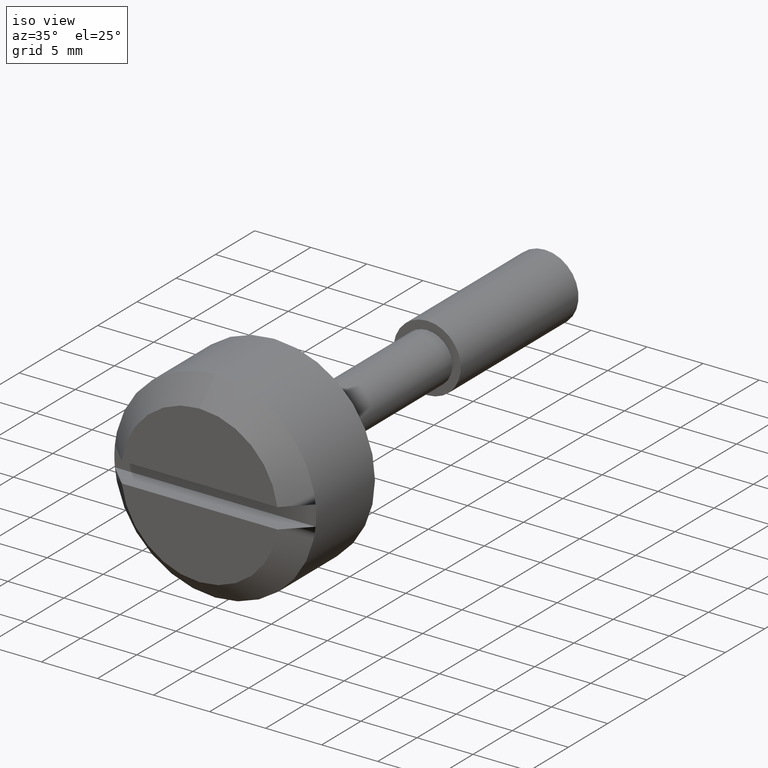
[diagram: clean part render]
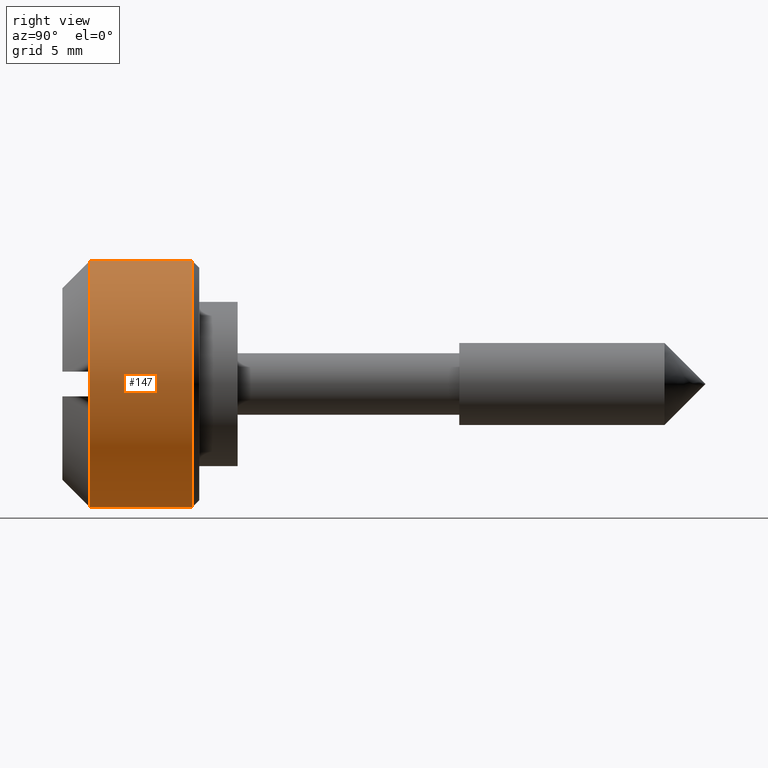
[diagram: tour spotlight — one face highlighted and labeled with its STEP entity id]
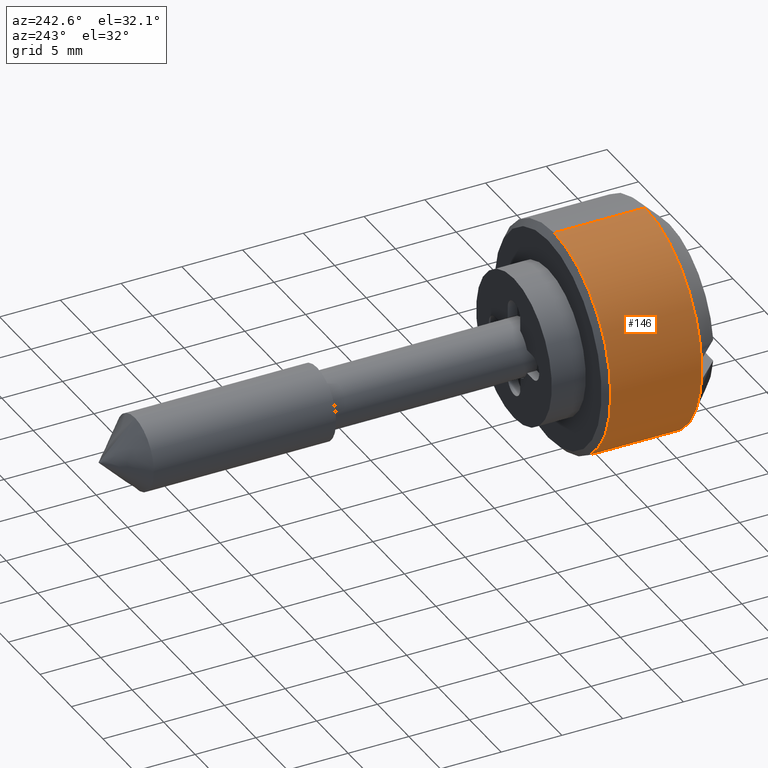
[diagram: tour spotlight — one face highlighted and labeled with its STEP entity id]
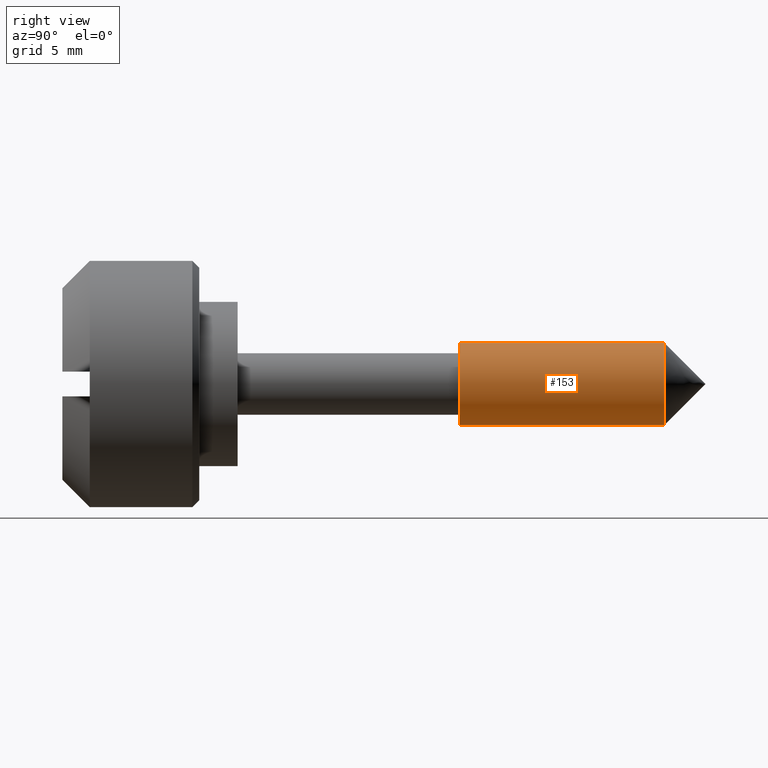
[diagram: tour spotlight — one face highlighted and labeled with its STEP entity id]
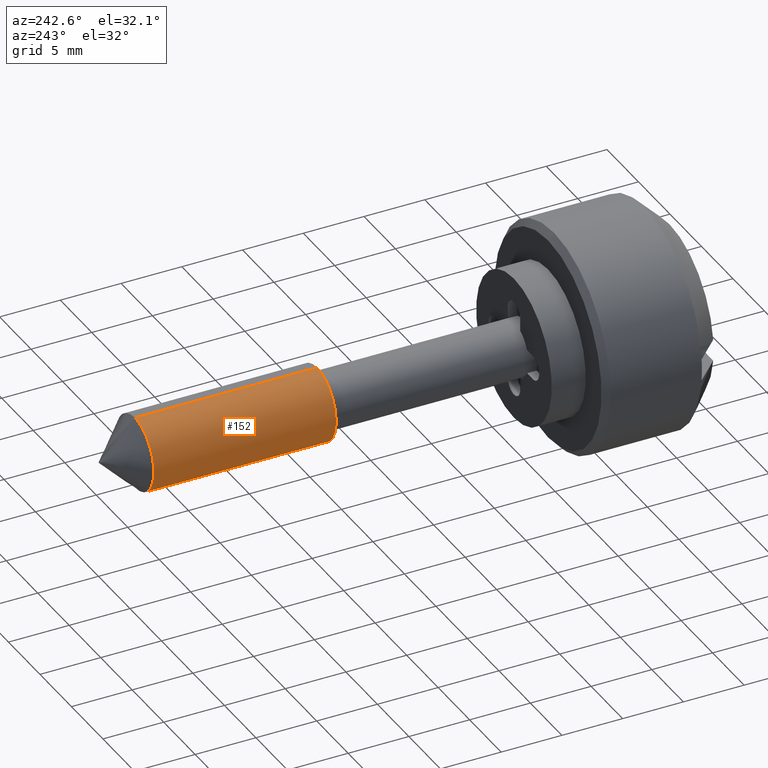
[diagram: tour spotlight — one face highlighted and labeled with its STEP entity id]
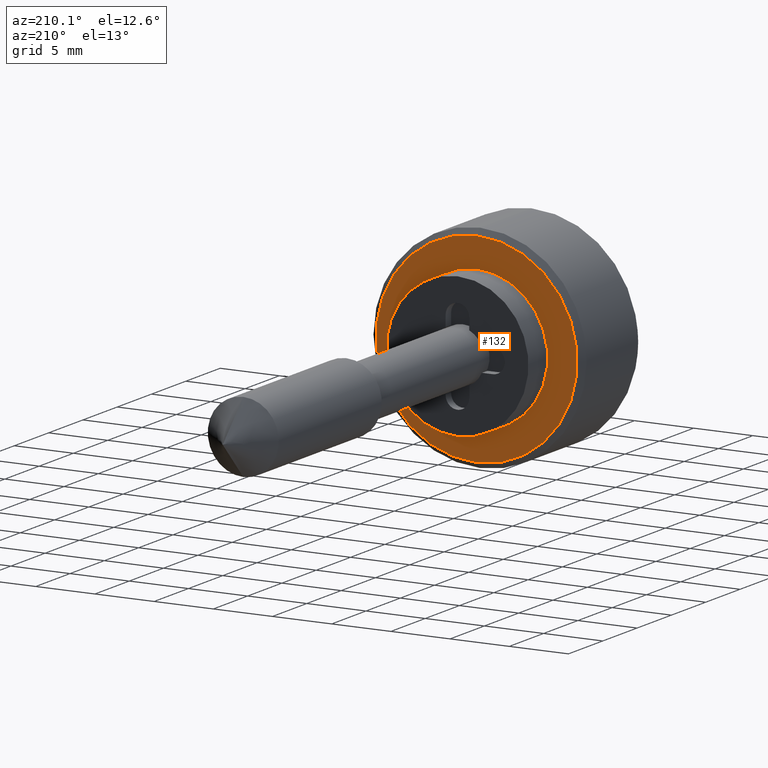
[diagram: tour spotlight — one face highlighted and labeled with its STEP entity id]
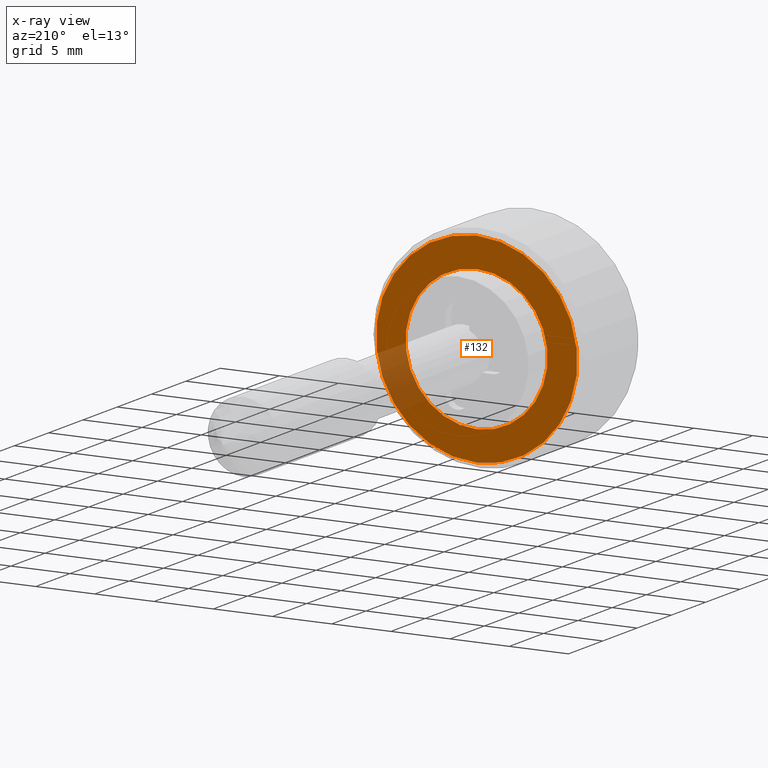
[diagram: x-ray of the same camera — body ghosted, this tour face saturated]
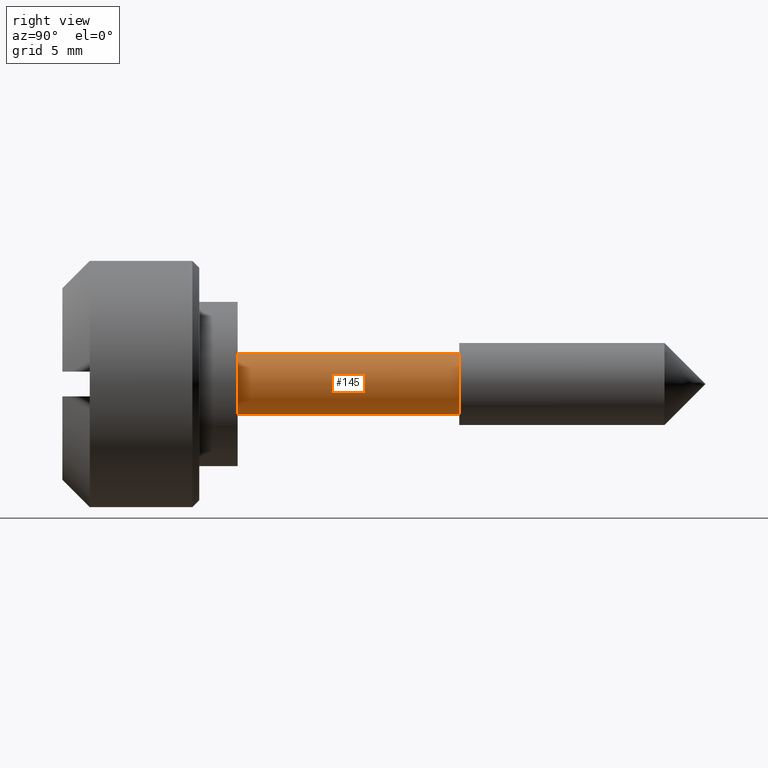
[diagram: tour spotlight — one face highlighted and labeled with its STEP entity id]
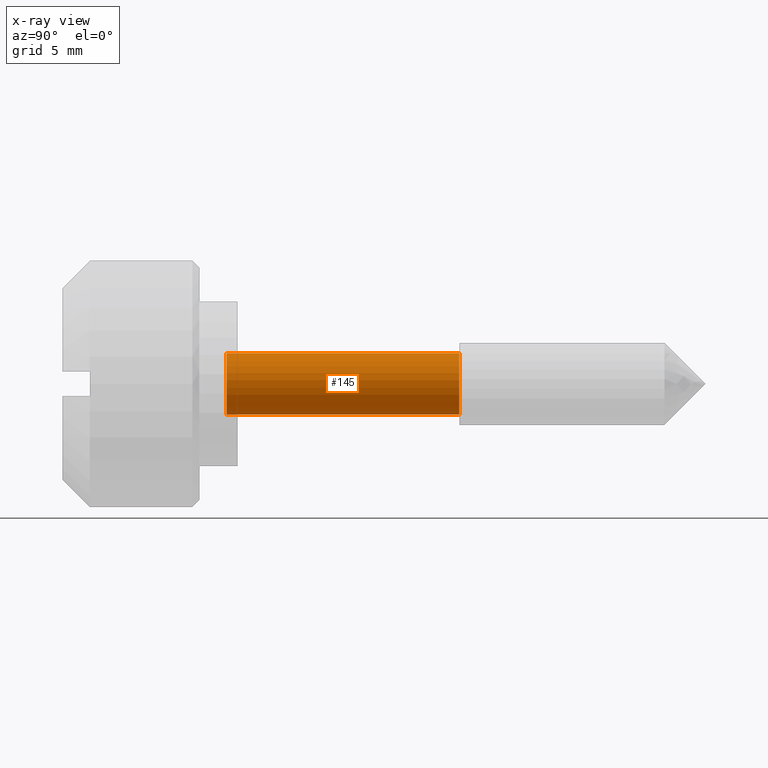
[diagram: x-ray of the same camera — body ghosted, this tour face saturated]
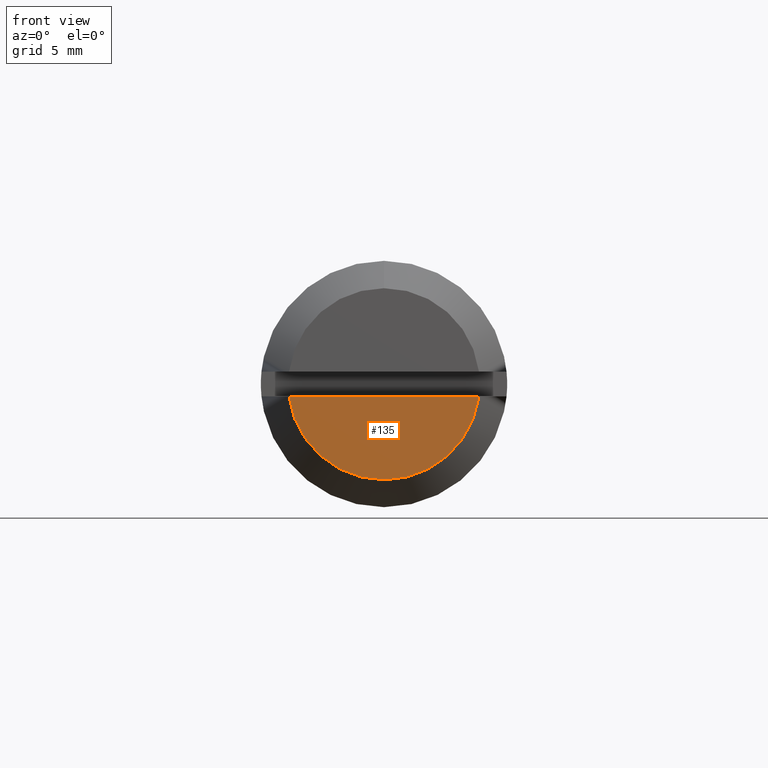
[diagram: tour spotlight — one face highlighted and labeled with its STEP entity id]
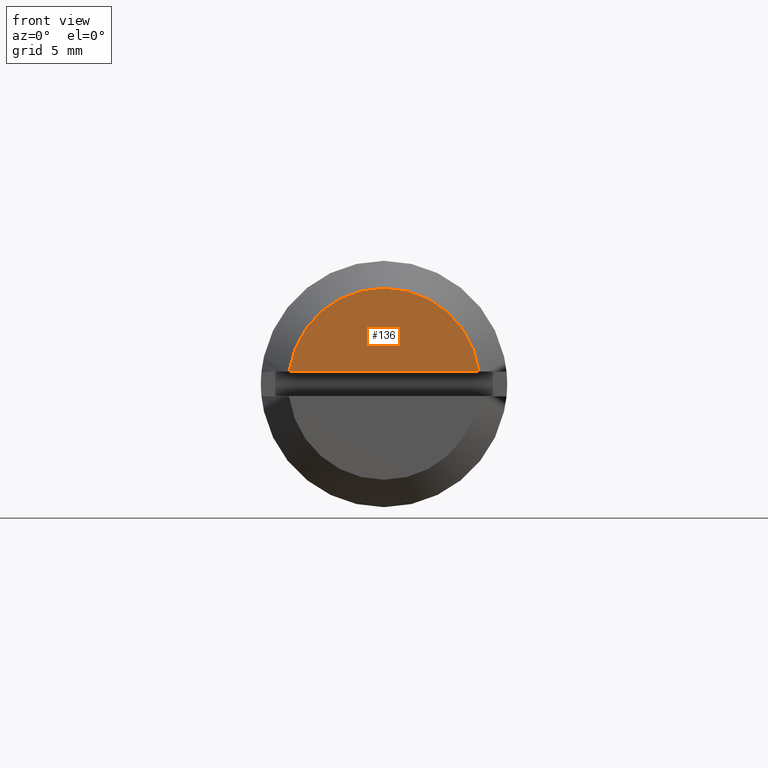
[diagram: tour spotlight — one face highlighted and labeled with its STEP entity id]
A machine part: a face-by-face anatomy tour. The part has 42 B-rep faces; the first image is the clean iso view, then the 8 largest visible faces are spotlighted one at a time (largest first), each with its STEP entity span.

Face 1 — right view, entity #147. In plain terms, the highlighted cylindrical surface (partial cylindrical patch) has radius 9 mm, axis along (0, -1, -0).
Definition (entity closure, byte-faithful):
#147=ADVANCED_FACE('',(#510),#509,.T.);
#509=CYLINDRICAL_SURFACE('',#774,9.00000000000E+00);
#510=FACE_OUTER_BOUND('',#775,.T.);
#771=CARTESIAN_POINT('',(-1.00200000000E+03,0.00000000000E+00,0.00000000000E+00));
#772=DIRECTION('',(-1.00000000000E+00,-0.00000000000E+00,-0.00000000000E+00));
#773=DIRECTION('',(-0.00000000000E+00,-0.00000000000E+00,1.00000000000E+00));
#774=AXIS2_PLACEMENT_3D('',#771,#772,#773);
#775=EDGE_LOOP('',(#996,#997,#998,#999));
#996=ORIENTED_EDGE('',*,*,#1113,.T.);
#997=ORIENTED_EDGE('',*,*,#1119,.T.);
#998=ORIENTED_EDGE('',*,*,#1121,.F.);
#999=ORIENTED_EDGE('',*,*,#1120,.F.);
#1113=EDGE_CURVE('',#1669,#1668,#1688,.T.);
#1119=EDGE_CURVE('',#1668,#1718,#1726,.T.);
#1120=EDGE_CURVE('',#1669,#1719,#1732,.T.);
#1121=EDGE_CURVE('',#1719,#1718,#1738,.T.);
#1668=VERTEX_POINT('',#2133);
#1669=VERTEX_POINT('',#2134);
#1688=CIRCLE('',#2146,9.00000000000E+00);
#1718=VERTEX_POINT('',#2155);
#1719=VERTEX_POINT('',#2156);
#1726=(BOUNDED_CURVE() B_SPLINE_CURVE(1,(#2161,#2162),.UNSPECIFIED.,.F.,.F.) B_SPLINE_CURVE_WITH_KNOTS((2,2),(8.33333320912E-02,9.16666667486E-01),.UNSPECIFIED.) CURVE() GEOMETRIC_REPRESENTATION_ITEM() RATIONAL_B_SPLINE_CURVE((1.00000000000E+00,1.00000000000E+00)) REPRESENTATION_ITEM('') );
#1732=(BOUNDED_CURVE() B_SPLINE_CURVE(1,(#2163,#2164),.UNSPECIFIED.,.F.,.F.) B_SPLINE_CURVE_WITH_KNOTS((2,2),(8.33333333333E-02,9.16666666667E-01),.UNSPECIFIED.) CURVE() GEOMETRIC_REPRESENTATION_ITEM() RATIONAL_B_SPLINE_CURVE((7.50000000000E-01,7.50000000000E-01)) REPRESENTATION_ITEM('') );
#1738=CIRCLE('',#2168,9.00000000000E+00);
#2133=CARTESIAN_POINT('',(-2.50000000000E+00,2.07241631263E-15,9.00000000000E+00));
#2134=CARTESIAN_POINT('',(-2.50000000000E+00,0.00000000000E+00,-9.00000000000E+00));
#2143=CARTESIAN_POINT('',(-2.50000000000E+00,0.00000000000E+00,0.00000000000E+00));
#2144=DIRECTION('',(-1.00000000000E+00,0.00000000000E+00,-0.00000000000E+00));
#2145=DIRECTION('',(0.00000000000E+00,-1.22460635382E-16,-1.00000000000E+00));
#2146=AXIS2_PLACEMENT_3D('',#2143,#2144,#2145);
#2155=CARTESIAN_POINT('',(-9.99990000000E+00,0.00000000000E+00,9.00000000000E+00));
#2156=CARTESIAN_POINT('',(-9.99990000000E+00,5.92118946467E-16,-9.00000000000E+00));
#2161=CARTESIAN_POINT('',(-2.49999998882E+00,0.00000000000E+00,9.00000000000E+00));
#2162=CARTESIAN_POINT('',(-9.99990000737E+00,0.00000000000E+00,9.00000000000E+00));
#2163=CARTESIAN_POINT('',(-2.50000000000E+00,-5.92118946467E-16,-9.00000000000E+00));
#2164=CARTESIAN_POINT('',(-9.99990000000E+00,-5.92118946467E-16,-9.00000000000E+00));
#2165=CARTESIAN_POINT('',(-9.99990000000E+00,0.00000000000E+00,0.00000000000E+00));
#2166=DIRECTION('',(-1.00000000000E+00,0.00000000000E+00,0.00000000000E+00));
#2167=DIRECTION('',(0.00000000000E+00,-1.22460635382E-16,1.00000000000E+00));
#2168=AXIS2_PLACEMENT_3D('',#2165,#2166,#2167);

Face 2 — auxiliary view, entity #146. In plain terms, the highlighted cylindrical surface (partial cylindrical patch) has radius 9 mm, axis along (0, -1, -0).
Definition (entity closure, byte-faithful):
#146=ADVANCED_FACE('',(#500),#499,.T.);
#499=CYLINDRICAL_SURFACE('',#769,9.00000000000E+00);
#500=FACE_OUTER_BOUND('',#770,.T.);
#766=CARTESIAN_POINT('',(-1.00200000000E+03,0.00000000000E+00,0.00000000000E+00));
#767=DIRECTION('',(-1.00000000000E+00,-0.00000000000E+00,-0.00000000000E+00));
#768=DIRECTION('',(-0.00000000000E+00,-0.00000000000E+00,1.00000000000E+00));
#769=AXIS2_PLACEMENT_3D('',#766,#767,#768);
#770=EDGE_LOOP('',(#992,#993,#994,#995));
#992=ORIENTED_EDGE('',*,*,#1118,.F.);
#993=ORIENTED_EDGE('',*,*,#1119,.F.);
#994=ORIENTED_EDGE('',*,*,#1110,.T.);
#995=ORIENTED_EDGE('',*,*,#1120,.T.);
#1110=EDGE_CURVE('',#1668,#1669,#1670,.T.);
#1118=EDGE_CURVE('',#1718,#1719,#1720,.T.);
#1119=EDGE_CURVE('',#1668,#1718,#1726,.T.);
#1120=EDGE_CURVE('',#1669,#1719,#1732,.T.);
#1668=VERTEX_POINT('',#2133);
#1669=VERTEX_POINT('',#2134);
#1670=CIRCLE('',#2138,9.00000000000E+00);
#1718=VERTEX_POINT('',#2155);
#1719=VERTEX_POINT('',#2156);
#1720=CIRCLE('',#2160,9.00000000000E+00);
#1726=(BOUNDED_CURVE() B_SPLINE_CURVE(1,(#2161,#2162),.UNSPECIFIED.,.F.,.F.) B_SPLINE_CURVE_WITH_KNOTS((2,2),(8.33333320912E-02,9.16666667486E-01),.UNSPECIFIED.) CURVE() GEOMETRIC_REPRESENTATION_ITEM() RATIONAL_B_SPLINE_CURVE((1.00000000000E+00,1.00000000000E+00)) REPRESENTATION_ITEM('') );
#1732=(BOUNDED_CURVE() B_SPLINE_CURVE(1,(#2163,#2164),.UNSPECIFIED.,.F.,.F.) B_SPLINE_CURVE_WITH_KNOTS((2,2),(8.33333333333E-02,9.16666666667E-01),.UNSPECIFIED.) CURVE() GEOMETRIC_REPRESENTATION_ITEM() RATIONAL_B_SPLINE_CURVE((7.50000000000E-01,7.50000000000E-01)) REPRESENTATION_ITEM('') );
#2133=CARTESIAN_POINT('',(-2.50000000000E+00,2.07241631263E-15,9.00000000000E+00));
#2134=CARTESIAN_POINT('',(-2.50000000000E+00,0.00000000000E+00,-9.00000000000E+00));
#2135=CARTESIAN_POINT('',(-2.50000000000E+00,0.00000000000E+00,0.00000000000E+00));
#2136=DIRECTION('',(-1.00000000000E+00,0.00000000000E+00,-0.00000000000E+00));
#2137=DIRECTION('',(0.00000000000E+00,-1.22460635382E-16,-1.00000000000E+00));
#2138=AXIS2_PLACEMENT_3D('',#2135,#2136,#2137);
#2155=CARTESIAN_POINT('',(-9.99990000000E+00,0.00000000000E+00,9.00000000000E+00));
#2156=CARTESIAN_POINT('',(-9.99990000000E+00,5.92118946467E-16,-9.00000000000E+00));
#2157=CARTESIAN_POINT('',(-9.99990000000E+00,0.00000000000E+00,0.00000000000E+00));
#2158=DIRECTION('',(-1.00000000000E+00,0.00000000000E+00,0.00000000000E+00));
#2159=DIRECTION('',(0.00000000000E+00,-1.22460635382E-16,1.00000000000E+00));
#2160=AXIS2_PLACEMENT_3D('',#2157,#2158,#2159);
#2161=CARTESIAN_POINT('',(-2.49999998882E+00,0.00000000000E+00,9.00000000000E+00));
#2162=CARTESIAN_POINT('',(-9.99990000737E+00,0.00000000000E+00,9.00000000000E+00));
#2163=CARTESIAN_POINT('',(-2.50000000000E+00,-5.92118946467E-16,-9.00000000000E+00));
#2164=CARTESIAN_POINT('',(-9.99990000000E+00,-5.92118946467E-16,-9.00000000000E+00));

Face 3 — right view, entity #153. In plain terms, the highlighted cylindrical surface (partial cylindrical patch) has radius 3 mm, axis along (0, 1, 0).
Definition (entity closure, byte-faithful):
#153=ADVANCED_FACE('',(#570),#569,.T.);
#569=CYLINDRICAL_SURFACE('',#828,3.00000000000E+00);
#570=FACE_OUTER_BOUND('',#829,.T.);
#825=CARTESIAN_POINT('',(1.00000000000E+01,0.00000000000E+00,0.00000000000E+00));
#826=DIRECTION('',(1.00000000000E+00,-0.00000000000E+00,-0.00000000000E+00));
#827=DIRECTION('',(0.00000000000E+00,0.00000000000E+00,-1.00000000000E+00));
#828=AXIS2_PLACEMENT_3D('',#825,#826,#827);
#829=EDGE_LOOP('',(#1026,#1027,#1028,#1029));
#1026=ORIENTED_EDGE('',*,*,#1093,.F.);
#1027=ORIENTED_EDGE('',*,*,#1128,.T.);
#1028=ORIENTED_EDGE('',*,*,#1124,.T.);
#1029=ORIENTED_EDGE('',*,*,#1129,.F.);
#1093=EDGE_CURVE('',#1547,#1546,#1554,.T.);
#1124=EDGE_CURVE('',#1756,#1757,#1758,.T.);
#1128=EDGE_CURVE('',#1547,#1756,#1783,.T.);
#1129=EDGE_CURVE('',#1546,#1757,#1789,.T.);
#1546=VERTEX_POINT('',#2051);
#1547=VERTEX_POINT('',#2052);
#1554=CIRCLE('',#2060,3.00000000000E+00);
#1756=VERTEX_POINT('',#2173);
#1757=VERTEX_POINT('',#2174);
#1758=CIRCLE('',#2178,3.00000000000E+00);
#1783=(BOUNDED_CURVE() B_SPLINE_CURVE(1,(#2188,#2189),.UNSPECIFIED.,.F.,.F.) B_SPLINE_CURVE_WITH_KNOTS((2,2),(8.33333328360E-02,9.16666666871E-01),.UNSPECIFIED.) CURVE() GEOMETRIC_REPRESENTATION_ITEM() RATIONAL_B_SPLINE_CURVE((1.00000000000E+00,1.00000000000E+00)) REPRESENTATION_ITEM('') );
#1789=(BOUNDED_CURVE() B_SPLINE_CURVE(1,(#2190,#2191),.UNSPECIFIED.,.F.,.F.) B_SPLINE_CURVE_WITH_KNOTS((2,2),(8.33333333333E-02,9.16666666667E-01),.UNSPECIFIED.) CURVE() GEOMETRIC_REPRESENTATION_ITEM() RATIONAL_B_SPLINE_CURVE((7.50000000000E-01,7.50000000000E-01)) REPRESENTATION_ITEM('') );
#2051=CARTESIAN_POINT('',(1.70000000000E+01,0.00000000000E+00,3.00000000000E+00));
#2052=CARTESIAN_POINT('',(1.70000000000E+01,-1.48029736617E-16,-3.00000000000E+00));
#2057=CARTESIAN_POINT('',(1.70000000000E+01,0.00000000000E+00,0.00000000000E+00));
#2058=DIRECTION('',(-1.00000000000E+00,0.00000000000E+00,0.00000000000E+00));
#2059=DIRECTION('',(0.00000000000E+00,-1.22460635382E-16,1.00000000000E+00));
#2060=AXIS2_PLACEMENT_3D('',#2057,#2058,#2059);
#2173=CARTESIAN_POINT('',(3.20000000000E+01,-1.48029736617E-16,-3.00000000000E+00));
#2174=CARTESIAN_POINT('',(3.20000000000E+01,0.00000000000E+00,3.00000000000E+00));
#2175=CARTESIAN_POINT('',(3.20000000000E+01,0.00000000000E+00,0.00000000000E+00));
#2176=DIRECTION('',(-1.00000000000E+00,0.00000000000E+00,0.00000000000E+00));
#2177=DIRECTION('',(0.00000000000E+00,-1.22460635382E-16,1.00000000000E+00));
#2178=AXIS2_PLACEMENT_3D('',#2175,#2176,#2177);
#2188=CARTESIAN_POINT('',(1.69999999910E+01,0.00000000000E+00,-3.00000000000E+00));
#2189=CARTESIAN_POINT('',(3.20000000037E+01,0.00000000000E+00,-3.00000000000E+00));
#2190=CARTESIAN_POINT('',(1.70000000000E+01,-1.48029736617E-16,3.00000000000E+00));
#2191=CARTESIAN_POINT('',(3.20000000000E+01,-1.48029736617E-16,3.00000000000E+00));

Face 4 — auxiliary view, entity #152. In plain terms, the highlighted cylindrical surface (partial cylindrical patch) has radius 3 mm, axis along (0, 1, 0).
Definition (entity closure, byte-faithful):
#152=ADVANCED_FACE('',(#560),#559,.T.);
#559=CYLINDRICAL_SURFACE('',#823,3.00000000000E+00);
#560=FACE_OUTER_BOUND('',#824,.T.);
#820=CARTESIAN_POINT('',(1.00000000000E+01,0.00000000000E+00,0.00000000000E+00));
#821=DIRECTION('',(1.00000000000E+00,-0.00000000000E+00,-0.00000000000E+00));
#822=DIRECTION('',(0.00000000000E+00,0.00000000000E+00,-1.00000000000E+00));
#823=AXIS2_PLACEMENT_3D('',#820,#821,#822);
#824=EDGE_LOOP('',(#1022,#1023,#1024,#1025));
#1022=ORIENTED_EDGE('',*,*,#1127,.T.);
#1023=ORIENTED_EDGE('',*,*,#1128,.F.);
#1024=ORIENTED_EDGE('',*,*,#1092,.F.);
#1025=ORIENTED_EDGE('',*,*,#1129,.T.);
#1092=EDGE_CURVE('',#1546,#1547,#1548,.T.);
#1127=EDGE_CURVE('',#1757,#1756,#1777,.T.);
#1128=EDGE_CURVE('',#1547,#1756,#1783,.T.);
#1129=EDGE_CURVE('',#1546,#1757,#1789,.T.);
#1546=VERTEX_POINT('',#2051);
#1547=VERTEX_POINT('',#2052);
#1548=CIRCLE('',#2056,3.00000000000E+00);
#1756=VERTEX_POINT('',#2173);
#1757=VERTEX_POINT('',#2174);
#1777=CIRCLE('',#2187,3.00000000000E+00);
#1783=(BOUNDED_CURVE() B_SPLINE_CURVE(1,(#2188,#2189),.UNSPECIFIED.,.F.,.F.) B_SPLINE_CURVE_WITH_KNOTS((2,2),(8.33333328360E-02,9.16666666871E-01),.UNSPECIFIED.) CURVE() GEOMETRIC_REPRESENTATION_ITEM() RATIONAL_B_SPLINE_CURVE((1.00000000000E+00,1.00000000000E+00)) REPRESENTATION_ITEM('') );
#1789=(BOUNDED_CURVE() B_SPLINE_CURVE(1,(#2190,#2191),.UNSPECIFIED.,.F.,.F.) B_SPLINE_CURVE_WITH_KNOTS((2,2),(8.33333333333E-02,9.16666666667E-01),.UNSPECIFIED.) CURVE() GEOMETRIC_REPRESENTATION_ITEM() RATIONAL_B_SPLINE_CURVE((7.50000000000E-01,7.50000000000E-01)) REPRESENTATION_ITEM('') );
#2051=CARTESIAN_POINT('',(1.70000000000E+01,0.00000000000E+00,3.00000000000E+00));
#2052=CARTESIAN_POINT('',(1.70000000000E+01,-1.48029736617E-16,-3.00000000000E+00));
#2053=CARTESIAN_POINT('',(1.70000000000E+01,0.00000000000E+00,0.00000000000E+00));
#2054=DIRECTION('',(-1.00000000000E+00,0.00000000000E+00,0.00000000000E+00));
#2055=DIRECTION('',(0.00000000000E+00,-1.22460635382E-16,1.00000000000E+00));
#2056=AXIS2_PLACEMENT_3D('',#2053,#2054,#2055);
#2173=CARTESIAN_POINT('',(3.20000000000E+01,-1.48029736617E-16,-3.00000000000E+00));
#2174=CARTESIAN_POINT('',(3.20000000000E+01,0.00000000000E+00,3.00000000000E+00));
#2184=CARTESIAN_POINT('',(3.20000000000E+01,0.00000000000E+00,0.00000000000E+00));
#2185=DIRECTION('',(-1.00000000000E+00,0.00000000000E+00,0.00000000000E+00));
#2186=DIRECTION('',(0.00000000000E+00,-1.22460635382E-16,1.00000000000E+00));
#2187=AXIS2_PLACEMENT_3D('',#2184,#2185,#2186);
#2188=CARTESIAN_POINT('',(1.69999999910E+01,0.00000000000E+00,-3.00000000000E+00));
#2189=CARTESIAN_POINT('',(3.20000000037E+01,0.00000000000E+00,-3.00000000000E+00));
#2190=CARTESIAN_POINT('',(1.70000000000E+01,-1.48029736617E-16,3.00000000000E+00));
#2191=CARTESIAN_POINT('',(3.20000000000E+01,-1.48029736617E-16,3.00000000000E+00));

Face 5 — auxiliary view, entity #132. An x-ray twin of the same camera follows (body ghosted, this face saturated) — the face is partly hidden behind the body. In plain terms, the highlighted planar face has unit normal (0, 1, 0).
Definition (entity closure, byte-faithful):
#132=ADVANCED_FACE('',(#357,#358),#356,.T.);
#356=PLANE('',#684);
#357=FACE_OUTER_BOUND('',#685,.T.);
#358=FACE_BOUND('',#686,.T.);
#681=CARTESIAN_POINT('',(-2.00000000000E+00,-1.76669182372E+01,-1.10500000000E+01));
#682=DIRECTION('',(1.00000000000E+00,0.00000000000E+00,0.00000000000E+00));
#683=DIRECTION('',(0.00000000000E+00,1.00000000000E+00,0.00000000000E+00));
#684=AXIS2_PLACEMENT_3D('',#681,#682,#683);
#685=EDGE_LOOP('',(#938,#939));
#686=EDGE_LOOP('',(#940,#941));
#938=ORIENTED_EDGE('',*,*,#1084,.T.);
#939=ORIENTED_EDGE('',*,*,#1085,.T.);
#940=ORIENTED_EDGE('',*,*,#1086,.T.);
#941=ORIENTED_EDGE('',*,*,#1087,.T.);
#1084=EDGE_CURVE('',#1490,#1491,#1492,.T.);
#1085=EDGE_CURVE('',#1491,#1490,#1498,.T.);
#1086=EDGE_CURVE('',#1504,#1505,#1506,.T.);
#1087=EDGE_CURVE('',#1505,#1504,#1512,.T.);
#1490=VERTEX_POINT('',#2011);
#1491=VERTEX_POINT('',#2012);
#1492=CIRCLE('',#2016,8.50000000000E+00);
#1498=CIRCLE('',#2020,8.50000000000E+00);
#1504=VERTEX_POINT('',#2021);
#1505=VERTEX_POINT('',#2022);
#1506=CIRCLE('',#2026,6.00000000000E+00);
#1512=CIRCLE('',#2030,6.00000000000E+00);
#2011=CARTESIAN_POINT('',(-2.00000000000E+00,0.00000000000E+00,-8.50000000000E+00));
#2012=CARTESIAN_POINT('',(-2.00000000000E+00,8.88178419700E-16,8.50000000000E+00));
#2013=CARTESIAN_POINT('',(-2.00000000000E+00,0.00000000000E+00,0.00000000000E+00));
#2014=DIRECTION('',(1.00000000000E+00,0.00000000000E+00,0.00000000000E+00));
#2015=DIRECTION('',(0.00000000000E+00,-1.22460635382E-16,-1.00000000000E+00));
#2016=AXIS2_PLACEMENT_3D('',#2013,#2014,#2015);
#2017=CARTESIAN_POINT('',(-2.00000000000E+00,0.00000000000E+00,0.00000000000E+00));
#2018=DIRECTION('',(1.00000000000E+00,0.00000000000E+00,0.00000000000E+00));
#2019=DIRECTION('',(0.00000000000E+00,-1.22460635382E-16,-1.00000000000E+00));
#2020=AXIS2_PLACEMENT_3D('',#2017,#2018,#2019);
#2021=CARTESIAN_POINT('',(-2.00000000000E+00,0.00000000000E+00,-6.00000000000E+00));
#2022=CARTESIAN_POINT('',(-2.00000000000E+00,1.18423789293E-15,6.00000000000E+00));
#2023=CARTESIAN_POINT('',(-2.00000000000E+00,0.00000000000E+00,0.00000000000E+00));
#2024=DIRECTION('',(-1.00000000000E+00,0.00000000000E+00,-0.00000000000E+00));
#2025=DIRECTION('',(0.00000000000E+00,-1.22460635382E-16,-1.00000000000E+00));
#2026=AXIS2_PLACEMENT_3D('',#2023,#2024,#2025);
#2027=CARTESIAN_POINT('',(-2.00000000000E+00,0.00000000000E+00,0.00000000000E+00));
#2028=DIRECTION('',(-1.00000000000E+00,0.00000000000E+00,-0.00000000000E+00));
#2029=DIRECTION('',(0.00000000000E+00,-1.22460635382E-16,-1.00000000000E+00));
#2030=AXIS2_PLACEMENT_3D('',#2027,#2028,#2029);

Face 6 — right view, entity #145. An x-ray twin of the same camera follows (body ghosted, this face saturated) — the face is partly hidden behind the body. In plain terms, the highlighted cylindrical surface (edge-blend (fillet) strip) has radius 2.25 mm, axis along (0, 1, 0).
Definition (entity closure, byte-faithful):
#145=ADVANCED_FACE('',(#490),#489,.T.);
#489=CYLINDRICAL_SURFACE('',#764,2.25000000000E+00);
#490=FACE_OUTER_BOUND('',#765,.T.);
#761=CARTESIAN_POINT('',(1.00000000000E+03,0.00000000000E+00,0.00000000000E+00));
#762=DIRECTION('',(1.00000000000E+00,-0.00000000000E+00,-0.00000000000E+00));
#763=DIRECTION('',(-0.00000000000E+00,-0.00000000000E+00,-1.00000000000E+00));
#764=AXIS2_PLACEMENT_3D('',#761,#762,#763);
#765=EDGE_LOOP('',(#988,#989,#990,#991));
#988=ORIENTED_EDGE('',*,*,#1090,.T.);
#989=ORIENTED_EDGE('',*,*,#1116,.T.);
#990=ORIENTED_EDGE('',*,*,#1095,.F.);
#991=ORIENTED_EDGE('',*,*,#1117,.F.);
#1090=EDGE_CURVE('',#1532,#1533,#1534,.T.);
#1095=EDGE_CURVE('',#1561,#1560,#1568,.T.);
#1116=EDGE_CURVE('',#1533,#1560,#1706,.T.);
#1117=EDGE_CURVE('',#1532,#1561,#1712,.T.);
#1532=VERTEX_POINT('',#2041);
#1533=VERTEX_POINT('',#2042);
#1534=CIRCLE('',#2046,2.25000000000E+00);
#1560=VERTEX_POINT('',#2061);
#1561=VERTEX_POINT('',#2062);
#1568=CIRCLE('',#2070,2.25000000000E+00);
#1706=(BOUNDED_CURVE() B_SPLINE_CURVE(1,(#2151,#2152),.UNSPECIFIED.,.F.,.F.) B_SPLINE_CURVE_WITH_KNOTS((2,2),(8.33333328360E-02,9.16666665505E-01),.UNSPECIFIED.) CURVE() GEOMETRIC_REPRESENTATION_ITEM() RATIONAL_B_SPLINE_CURVE((1.00000000000E+00,1.00000000000E+00)) REPRESENTATION_ITEM('') );
#1712=(BOUNDED_CURVE() B_SPLINE_CURVE(1,(#2153,#2154),.UNSPECIFIED.,.F.,.F.) B_SPLINE_CURVE_WITH_KNOTS((2,2),(8.33333333333E-02,9.16666666667E-01),.UNSPECIFIED.) CURVE() GEOMETRIC_REPRESENTATION_ITEM() RATIONAL_B_SPLINE_CURVE((7.50000000000E-01,7.50000000000E-01)) REPRESENTATION_ITEM('') );
#2041=CARTESIAN_POINT('',(0.00000000000E+00,1.48029736617E-16,2.25000000000E+00));
#2042=CARTESIAN_POINT('',(0.00000000000E+00,0.00000000000E+00,-2.25000000000E+00));
#2043=CARTESIAN_POINT('',(0.00000000000E+00,0.00000000000E+00,0.00000000000E+00));
#2044=DIRECTION('',(1.00000000000E+00,0.00000000000E+00,0.00000000000E+00));
#2045=DIRECTION('',(0.00000000000E+00,-1.22460635382E-16,-1.00000000000E+00));
#2046=AXIS2_PLACEMENT_3D('',#2043,#2044,#2045);
#2061=CARTESIAN_POINT('',(1.70000000000E+01,0.00000000000E+00,-2.25000000000E+00));
#2062=CARTESIAN_POINT('',(1.70000000000E+01,1.48029736617E-16,2.25000000000E+00));
#2067=CARTESIAN_POINT('',(1.70000000000E+01,0.00000000000E+00,0.00000000000E+00));
#2068=DIRECTION('',(1.00000000000E+00,0.00000000000E+00,0.00000000000E+00));
#2069=DIRECTION('',(0.00000000000E+00,-1.22460635382E-16,-1.00000000000E+00));
#2070=AXIS2_PLACEMENT_3D('',#2067,#2068,#2069);
#2151=CARTESIAN_POINT('',(-1.01464276980E-08,0.00000000000E+00,-2.25000000000E+00));
#2152=CARTESIAN_POINT('',(1.69999999763E+01,0.00000000000E+00,-2.25000000000E+00));
#2153=CARTESIAN_POINT('',(2.96059473233E-16,-1.48029736617E-16,2.25000000000E+00));
#2154=CARTESIAN_POINT('',(1.70000000000E+01,-1.48029736617E-16,2.25000000000E+00));

Face 7 — front view, entity #135. In plain terms, the highlighted planar face has unit normal (0, 1, 0).
Definition (entity closure, byte-faithful):
#135=ADVANCED_FACE('',(#390),#389,.F.);
#389=PLANE('',#702);
#390=FACE_OUTER_BOUND('',#703,.T.);
#699=CARTESIAN_POINT('',(-1.19999000000E+01,-8.33028210806E+00,-7.61000000000E+00));
#700=DIRECTION('',(1.00000000000E+00,0.00000000000E+00,0.00000000000E+00));
#701=DIRECTION('',(0.00000000000E+00,1.00000000000E+00,0.00000000000E+00));
#702=AXIS2_PLACEMENT_3D('',#699,#700,#701);
#703=EDGE_LOOP('',(#950,#951,#952));
#950=ORIENTED_EDGE('',*,*,#1096,.T.);
#951=ORIENTED_EDGE('',*,*,#1097,.T.);
#952=ORIENTED_EDGE('',*,*,#1098,.F.);
#1096=EDGE_CURVE('',#1574,#1575,#1576,.T.);
#1097=EDGE_CURVE('',#1575,#1582,#1583,.T.);
#1098=EDGE_CURVE('',#1574,#1582,#1589,.T.);
#1574=VERTEX_POINT('',#2071);
#1575=VERTEX_POINT('',#2072);
#1576=CIRCLE('',#2076,7.00000000000E+00);
#1582=VERTEX_POINT('',#2077);
#1583=CIRCLE('',#2081,7.00000000000E+00);
#1589=LINE('',#2082,#2083);
#2071=CARTESIAN_POINT('',(-1.19999000000E+01,6.94190175672E+00,-9.00000000000E-01));
#2072=CARTESIAN_POINT('',(-1.19999000000E+01,4.46131334097E-11,-7.00000000000E+00));
#2073=CARTESIAN_POINT('',(-1.19999000000E+01,0.00000000000E+00,0.00000000000E+00));
#2074=DIRECTION('',(-1.00000000000E+00,0.00000000000E+00,0.00000000000E+00));
#2075=DIRECTION('',(-0.00000000000E+00,9.91700250960E-01,-1.28571428572E-01));
#2076=AXIS2_PLACEMENT_3D('',#2073,#2074,#2075);
#2077=CARTESIAN_POINT('',(-1.19999000000E+01,-6.94190175672E+00,-9.00000000000E-01));
#2078=CARTESIAN_POINT('',(-1.19999000000E+01,0.00000000000E+00,0.00000000000E+00));
#2079=DIRECTION('',(-1.00000000000E+00,0.00000000000E+00,0.00000000000E+00));
#2080=DIRECTION('',(-0.00000000000E+00,9.91700250960E-01,-1.28571428572E-01));
#2081=AXIS2_PLACEMENT_3D('',#2078,#2079,#2080);
#2082=CARTESIAN_POINT('',(-1.19999000000E+01,6.94190175672E+00,-9.00000000000E-01));
#2083=VECTOR('',#2084,1.38838035134E+01);
#2084=DIRECTION('',(0.00000000000E+00,-1.00000000000E+00,0.00000000000E+00));

Face 8 — front view, entity #136. In plain terms, the highlighted planar face has unit normal (0, 1, 0).
Definition (entity closure, byte-faithful):
#136=ADVANCED_FACE('',(#400),#399,.F.);
#399=PLANE('',#707);
#400=FACE_OUTER_BOUND('',#708,.T.);
#704=CARTESIAN_POINT('',(-1.19999000000E+01,-8.33028210806E+00,2.90000000000E-01));
#705=DIRECTION('',(1.00000000000E+00,0.00000000000E+00,0.00000000000E+00));
#706=DIRECTION('',(0.00000000000E+00,1.00000000000E+00,0.00000000000E+00));
#707=AXIS2_PLACEMENT_3D('',#704,#705,#706);
#708=EDGE_LOOP('',(#953,#954,#955));
#953=ORIENTED_EDGE('',*,*,#1099,.T.);
#954=ORIENTED_EDGE('',*,*,#1100,.T.);
#955=ORIENTED_EDGE('',*,*,#1101,.T.);
#1099=EDGE_CURVE('',#1595,#1596,#1597,.T.);
#1100=EDGE_CURVE('',#1596,#1603,#1604,.T.);
#1101=EDGE_CURVE('',#1603,#1595,#1610,.T.);
#1595=VERTEX_POINT('',#2085);
#1596=VERTEX_POINT('',#2086);
#1597=CIRCLE('',#2090,7.00000000000E+00);
#1603=VERTEX_POINT('',#2091);
#1604=CIRCLE('',#2095,7.00000000000E+00);
#1610=LINE('',#2096,#2097);
#2085=CARTESIAN_POINT('',(-1.19999000000E+01,-6.94190175672E+00,9.00000000000E-01));
#2086=CARTESIAN_POINT('',(-1.19999000000E+01,7.64748739906E-11,7.00000000000E+00));
#2087=CARTESIAN_POINT('',(-1.19999000000E+01,0.00000000000E+00,0.00000000000E+00));
#2088=DIRECTION('',(-1.00000000000E+00,0.00000000000E+00,0.00000000000E+00));
#2089=DIRECTION('',(-0.00000000000E+00,-0.00000000000E+00,-1.00000000000E+00));
#2090=AXIS2_PLACEMENT_3D('',#2087,#2088,#2089);
#2091=CARTESIAN_POINT('',(-1.19999000000E+01,6.94190175672E+00,9.00000000000E-01));
#2092=CARTESIAN_POINT('',(-1.19999000000E+01,0.00000000000E+00,0.00000000000E+00));
#2093=DIRECTION('',(-1.00000000000E+00,0.00000000000E+00,0.00000000000E+00));
#2094=DIRECTION('',(-0.00000000000E+00,-0.00000000000E+00,-1.00000000000E+00));
#2095=AXIS2_PLACEMENT_3D('',#2092,#2093,#2094);
#2096=CARTESIAN_POINT('',(-1.19999000000E+01,6.94190175672E+00,9.00000000000E-01));
#2097=VECTOR('',#2098,1.38838035134E+01);
#2098=DIRECTION('',(0.00000000000E+00,-1.00000000000E+00,0.00000000000E+00));